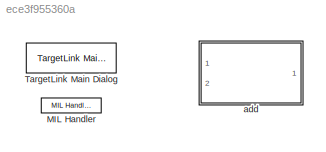
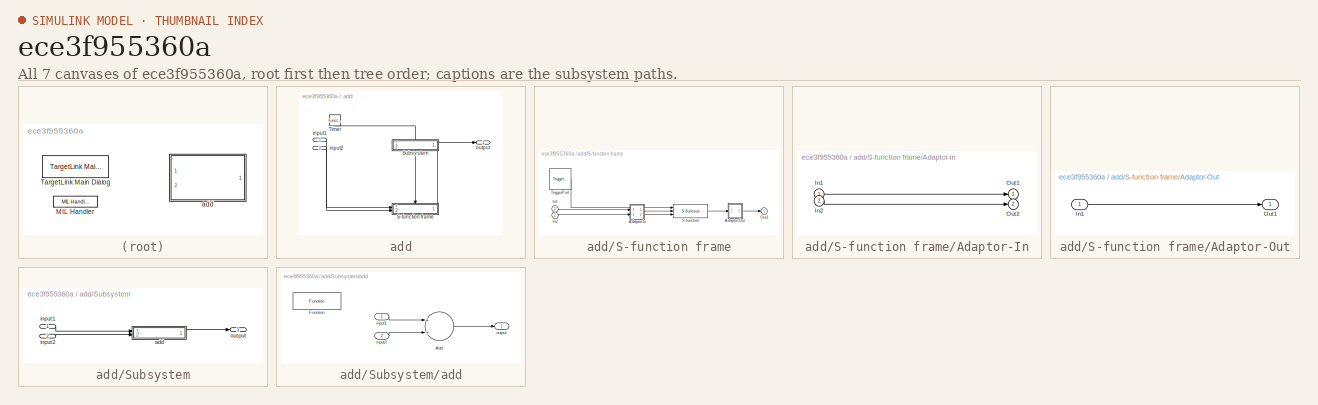
[diagram: thumbnail index - all 7 canvases of the model, root first then tree order]
MODEL slx_ece3f955360a
KIND model
CONFIG AbsTol = auto
CONFIG EnableMultiTasking = off
CONFIG FixedStep = auto
CONFIG InitFcn = if exist('tlds_init','file'), tlds_init(gcs); end
CONFIG MaxStep = auto
CONFIG MinStep = auto
CONFIG PostLoadFcn = if exist('tl_postloadfcn','file'), tl_postloadfcn(gcs,403); end
CONFIG PreLoadFcn = if exist('tl_preloadfcn','file'), tl_preloadfcn(gcs,403); end
CONFIG RelTol = 1e-3
CONFIG SampleTimeConstraint = Unconstrained
CONFIG Solver = FixedStepAuto
CONFIG SolverName = FixedStepAuto
CONFIG StartFcn = if exist('tlds_start','file'), tlds_start(gcs); end
CONFIG StartTime = 0.0
CONFIG StopFcn = if exist('tlds_stop','file'), tlds_stop(gcs); end
CONFIG StopTime = 10.0
BLOCK [Reference] MIL Handler  REF=tllib/MIL Handler
  Ports = []
  SourceBlock = tllib/MIL Handler
  SourceProductName = dSPACE TargetLink common blockset
  SourceType = TL_MilHandler
BLOCK [Reference] TargetLink Main Dialog  REF=tllib/TargetLink Main Dialog
  Ports = []
  SourceBlock = tllib/TargetLink Main Dialog
  SourceProductName = dSPACE TargetLink common blockset
  SourceType = TL_MainDialog
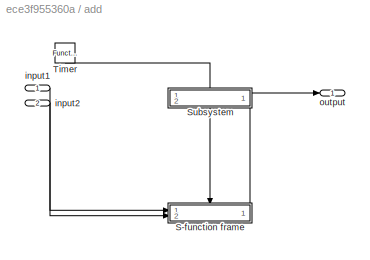
BLOCK [SubSystem] add
  CopyFcn = if exist('tl_copyfcn','file'), tl_copyfcn(gcbh); end
  NameChangeFcn = if exist('tl_framenamechangefcn','file'), tl_framenamechangefcn(gcbh); end
  OpenFcn = if exist('open_tlsubsystem','file')\n   open_tlsubsystem(gcbh);\nelse\n   tlsubsystem = ...\n      find_system(gcb, ...\n      'LookUnderMasks','on', ...\n      'FollowLinks','on', ...\n      'Tag','MIL Subsystem');\n   open_system(tlsubsystem);\nend
  Ports = [2, 1]
  RequestExecContextInheritance = off
  Tag = TargetLink Simulation Frame
  Variant = off
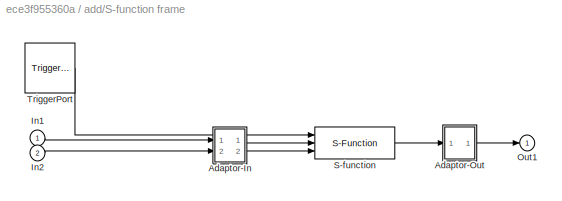
BLOCK [SubSystem] add/S-function frame
  Ports = [2, 1, 0, 1]
  RequestExecContextInheritance = off
  Variant = off
BLOCK [SubSystem] add/S-function frame/Adaptor-In
  Ports = [2, 2]
  RequestExecContextInheritance = off
  Variant = off
BLOCK [Inport] add/S-function frame/Adaptor-In/In1
  IconDisplay = Port number
BLOCK [Inport] add/S-function frame/Adaptor-In/In2
  IconDisplay = Port number
  Port = 2
BLOCK [Outport] add/S-function frame/Adaptor-In/Out1
  IconDisplay = Port number
BLOCK [Outport] add/S-function frame/Adaptor-In/Out2
  IconDisplay = Port number
  Port = 2
BLOCK [SubSystem] add/S-function frame/Adaptor-Out
  Ports = [1, 1]
  RequestExecContextInheritance = off
  Variant = off
BLOCK [Inport] add/S-function frame/Adaptor-Out/In1
  IconDisplay = Port number
BLOCK [Outport] add/S-function frame/Adaptor-Out/Out1
  IconDisplay = Port number
BLOCK [Inport] add/S-function frame/In1
  IconDisplay = Port number
BLOCK [Inport] add/S-function frame/In2
  IconDisplay = Port number
  Port = 2
BLOCK [Outport] add/S-function frame/Out1
  IconDisplay = Port number
  InitialOutput = double(0)
  SourceOfInitialOutputValue = Input signal
BLOCK [S-Function] add/S-function frame/S-function
  EnableBusSupport = off
  FunctionName = add_sf
  InitFcn = clear add_sf
  Parameters = 'add' , 'HostPC64' , 'GCC', 'HostPC'
  Ports = [3, 1]
  SFcnIsStateOwnerBlock = off
  SFunctionDeploymentMode = off
  Tag = FXP_HOST_SIM
BLOCK [TriggerPort] add/S-function frame/TriggerPort
  Ports = [0, 1]
  ShowOutputPort = on
  TriggerType = function-call
  VariantControl = (inherit)
BLOCK [SubSystem] add/Subsystem
  Commented = on
  OpenFcn = warndlg(get_param(gcb,'MaskHelp'),'Serious Warning');
  Ports = [2, 1]
  RequestExecContextInheritance = off
  Tag = struct('sfcnName','add_sf','subFunction','','srcSubsystem','')
  UserDataPersistent = on
  Variant = off
BLOCK [SubSystem] add/Subsystem/add
  CopyFcn = if exist('tl_copyfcn','file'), tl_copyfcn(gcbh); end
  Description = a
  DestroyFcn = if exist('update_tl_main_dlg','file'), update_tl_main_dlg('TL_subs_display'); end
  NameChangeFcn = if exist('tl_namechangefcn','file'), tl_namechangefcn(gcbh); end
  Ports = [2, 1]
  RequestExecContextInheritance = off
  Tag = disabled MIL Subsystem
  Variant = off
BLOCK [Sum] add/Subsystem/add/Add
  CopyFcn = if exist('tl_reset_reviewflag') == 2, tl_reset_reviewflag(gcbh); end; if ~strcmp(get_param(gcbh, 'LinkStatus'), 'implicit') set_param(gcbh,'ReferenceBlock',''); end;
  DeleteFcn = if exist('delete_tlblock','file')==2,delete_tlblock(gcbh);end
  InputSameDT = off
  NameChangeFcn = if exist('rename_tlblock','file')==2,rename_tlblock(gcbh);end
  OpenFcn = if exist('tl_open_blockdlg','file')==2,tl_open_blockdlg(gcbh);else,open_system(gcbh,'parameter');end
  OutDataTypeStr = Inherit: Inherit via internal rule
  Ports = [2, 1]
  SaturateOnIntegerOverflow = off
BLOCK [Reference] add/Subsystem/add/Function  REF=tllib/Function
  Ports = []
  SourceBlock = tllib/Function
  SourceProductName = dSPACE TargetLink common blockset
  SourceType = TL_Function
BLOCK [Inport] add/Subsystem/add/input1
  CopyFcn = if ~strcmp(get_param(gcbh, 'LinkStatus'), 'implicit') set_param(gcbh,'ReferenceBlock',''); end;\nif exist('tl_reset_reviewflag','file')==2\n    tl_reset_reviewflag(gcbh);\nend\nif exist('tl_check_ports','file')\n    tl_check_ports(gcbh);\nend  <repeated x3 — deduplicated; at blocks: input1, input2, output>
  DeleteFcn = if exist('delete_tlblock','file')==2,delete_tlblock(gcbh);end
  IconDisplay = Port number
  NameChangeFcn = if exist('rename_tlblock','file')==2,rename_tlblock(gcbh);end\nif exist('tl_check_ports','file'), tl_check_ports(gcbh); end
  OpenFcn = if exist('tl_open_blockdlg','file')==2,tl_open_blockdlg(gcbh);else,open_system(gcbh,'parameter');end
  PortDimensions = 1
BLOCK [Inport] add/Subsystem/add/input2
  DeleteFcn = if exist('delete_tlblock','file')==2,delete_tlblock(gcbh);end
  IconDisplay = Port number
  NameChangeFcn = if exist('rename_tlblock','file')==2,rename_tlblock(gcbh);end\nif exist('tl_check_ports','file'), tl_check_ports(gcbh); end
  OpenFcn = if exist('tl_open_blockdlg','file')==2,tl_open_blockdlg(gcbh);else,open_system(gcbh,'parameter');end
  Port = 2
  PortDimensions = 1
BLOCK [Outport] add/Subsystem/add/output
  DeleteFcn = if exist('delete_tlblock','file')==2,delete_tlblock(gcbh);end
  IconDisplay = Port number
  NameChangeFcn = if exist('rename_tlblock','file')==2,rename_tlblock(gcbh);end\nif exist('tl_check_ports','file'), tl_check_ports(gcbh); end
  OpenFcn = if exist('tl_open_blockdlg','file')==2,tl_open_blockdlg(gcbh);else,open_system(gcbh,'parameter');end
  PortDimensions = 1
BLOCK [Inport] add/Subsystem/input1
  IconDisplay = Port number
BLOCK [Inport] add/Subsystem/input2
  IconDisplay = Port number
  Port = 2
BLOCK [Outport] add/Subsystem/output
  IconDisplay = Port number
BLOCK [Reference] add/Timer  REF=simulink/Ports &
Subsystems/Function-Call
Generator
  Ports = [0, 1]
  SourceBlock = simulink/Ports &\nSubsystems/Function-Call\nGenerator
  SourceProductBaseCode = SL
  SourceProductName = Simulink
  SourceType = Function-Call Generator
BLOCK [Inport] add/input1
  IconDisplay = Port number
BLOCK [Inport] add/input2
  IconDisplay = Port number
  Port = 2
BLOCK [Outport] add/output
  IconDisplay = Port number
LINE add/S-function frame/Adaptor-In/In1:1 -> add/S-function frame/Adaptor-In/Out1:1
LINE add/S-function frame/Adaptor-In/In2:1 -> add/S-function frame/Adaptor-In/Out2:1
LINE add/S-function frame/Adaptor-In:1 -> add/S-function frame/S-function:2
LINE add/S-function frame/Adaptor-In:2 -> add/S-function frame/S-function:3
LINE add/S-function frame/Adaptor-Out/In1:1 -> add/S-function frame/Adaptor-Out/Out1:1
LINE add/S-function frame/Adaptor-Out:1 -> add/S-function frame/Out1:1
LINE add/S-function frame/In1:1 -> add/S-function frame/Adaptor-In:1
LINE add/S-function frame/In2:1 -> add/S-function frame/Adaptor-In:2
LINE add/S-function frame/S-function:1 -> add/S-function frame/Adaptor-Out:1
LINE add/S-function frame/TriggerPort:1 -> add/S-function frame/S-function:1
LINE add/S-function frame:1 -> add/output:1
LINE add/Subsystem/add/Add:1 -> add/Subsystem/add/output:1
LINE add/Subsystem/add/input1:1 -> add/Subsystem/add/Add:1
LINE add/Subsystem/add/input2:1 -> add/Subsystem/add/Add:2
LINE add/Subsystem/add:1 -> add/Subsystem/output:1
LINE add/Subsystem/input1:1 -> add/Subsystem/add:1
LINE add/Subsystem/input2:1 -> add/Subsystem/add:2
LINE add/Timer:1 -> add/S-function frame:trigger
LINE add/input1:1 -> add/S-function frame:1
LINE add/input2:1 -> add/S-function frame:2
